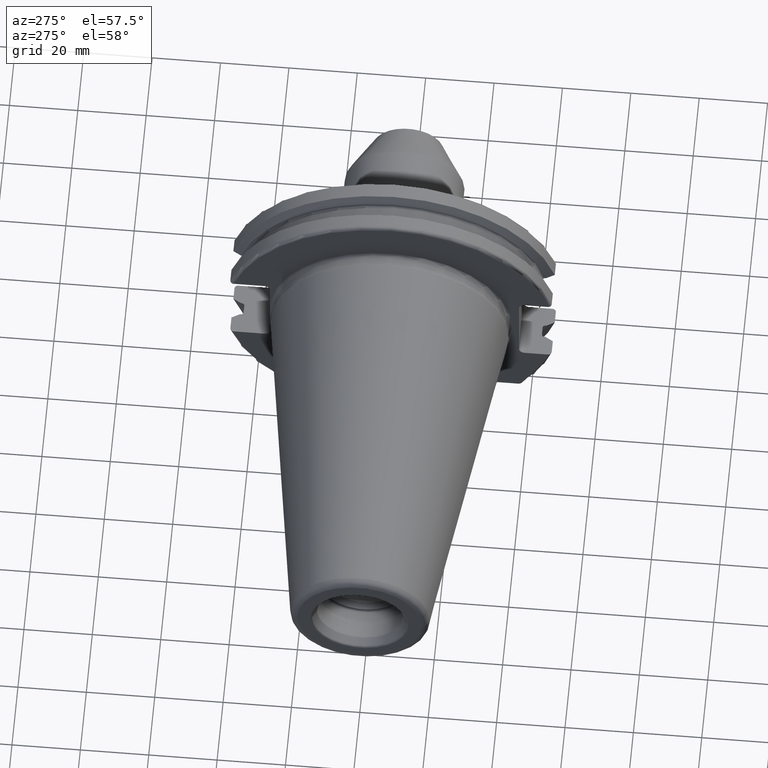
[diagram: clean part render]
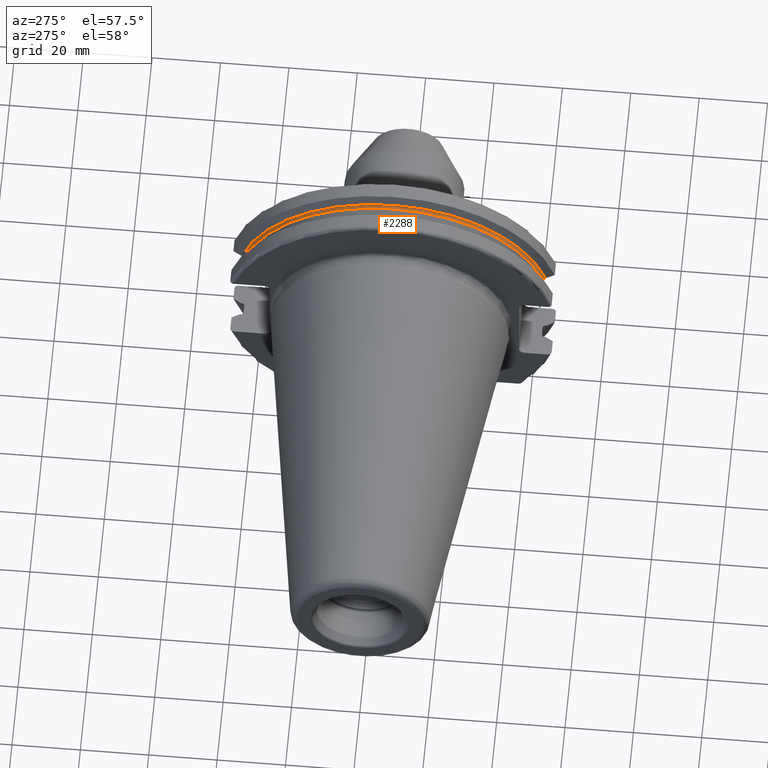
[diagram: same view with one face highlighted and labeled with its STEP entity id]
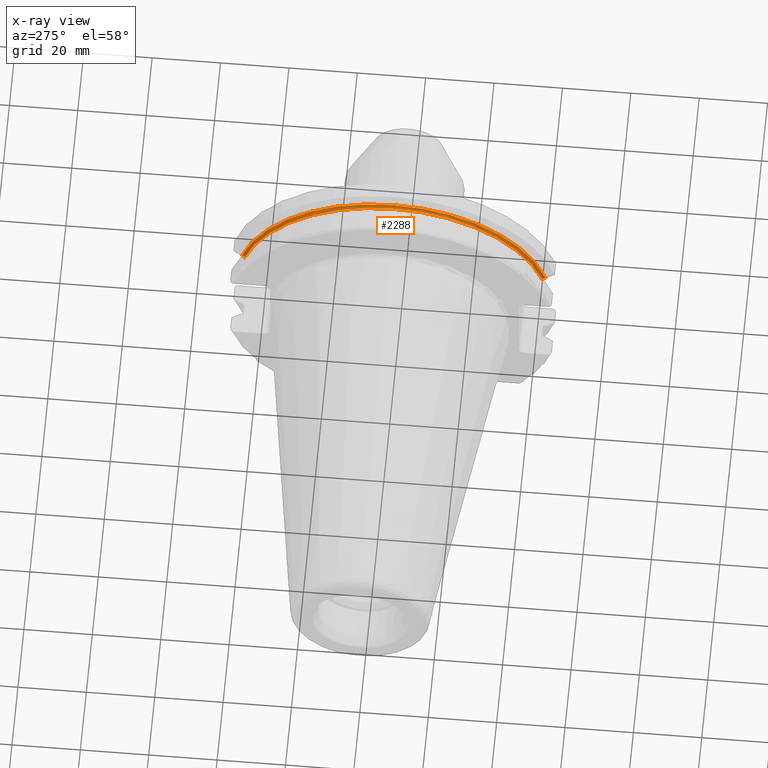
[diagram: x-ray of the same camera — body ghosted, the highlighted face saturated]
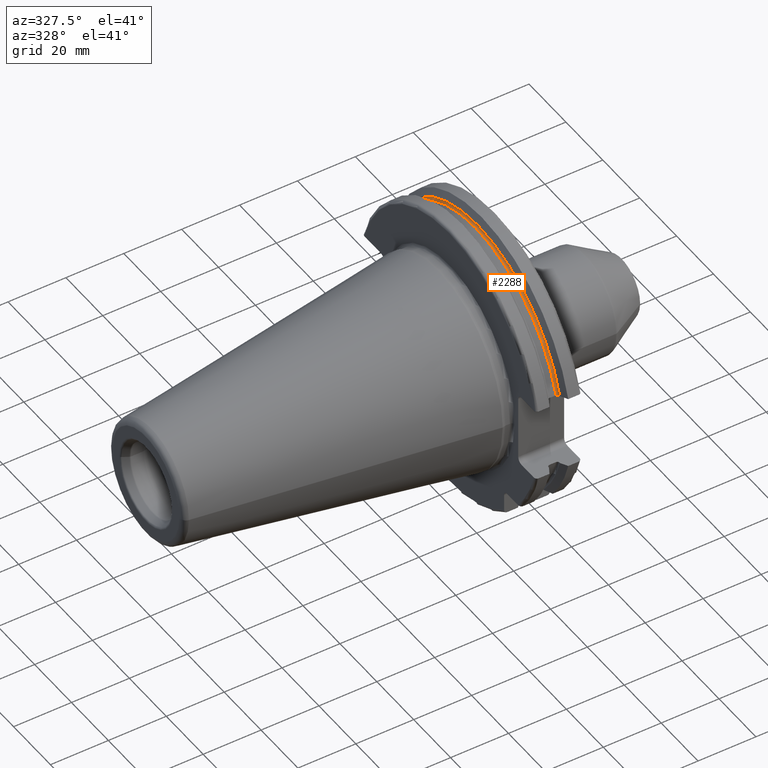
[diagram: same view with one face highlighted and labeled with its STEP entity id]
A machine part, auxiliary view. The second image highlights one B-rep face of the part: STEP entity #2288.
The next image is the same camera in x-ray: the body ghosted, the highlighted face saturated — about 0% of this face is hidden behind the body in this view.
A second angle (auxiliary view) of the same face is appended — the face is thin or edge-on in the first view.
In plain terms, the highlighted toroidal blend (fillet) surface has major radius 46.25 mm and minor (blend) radius 0.75 mm.
Its self-contained STEP definition (entity closure, byte-faithful):
#518=CARTESIAN_POINT('',(1.30875E1,4.441455279523E1,1.29E1));
#519=CARTESIAN_POINT('',(1.30875E1,4.435557140525E1,1.29E1));
#520=CARTESIAN_POINT('',(1.307499016648E1,4.424100688759E1,1.29E1));
#521=CARTESIAN_POINT('',(1.302032710232E1,4.407610890085E1,1.29E1));
#522=CARTESIAN_POINT('',(1.293214994527E1,4.392788522282E1,1.29E1));
#523=CARTESIAN_POINT('',(1.281390038390E1,4.380253784054E1,1.29E1));
#524=CARTESIAN_POINT('',(1.267050623563E1,4.370675082806E1,1.29E1));
#525=CARTESIAN_POINT('',(1.250801539042E1,4.364662320814E1,1.29E1));
#526=CARTESIAN_POINT('',(1.239551042481E1,4.363301502303E1,1.29E1));
#527=CARTESIAN_POINT('',(1.23375E1,4.363301502303E1,1.29E1));
#529=CARTESIAN_POINT('',(1.23375E1,-4.363301502303E1,1.29E1));
#530=CARTESIAN_POINT('',(1.239557783586E1,-4.363301502303E1,1.29E1));
#531=CARTESIAN_POINT('',(1.250820906846E1,-4.364665007470E1,1.29E1));
#532=CARTESIAN_POINT('',(1.267093813797E1,-4.370694986561E1,1.29E1));
#533=CARTESIAN_POINT('',(1.281439563225E1,-4.380294947330E1,1.29E1));
#534=CARTESIAN_POINT('',(1.293252862153E1,-4.392839993682E1,1.29E1));
#535=CARTESIAN_POINT('',(1.302050347613E1,-4.407653953968E1,1.29E1));
#536=CARTESIAN_POINT('',(1.307501400290E1,-4.424119768686E1,1.29E1));
#537=CARTESIAN_POINT('',(1.30875E1,-4.435563691943E1,1.29E1));
#538=CARTESIAN_POINT('',(1.30875E1,-4.441455279523E1,1.29E1));
#540=CARTESIAN_POINT('',(1.23375E1,0.E0,0.E0));
#541=DIRECTION('',(1.E0,0.E0,0.E0));
#542=DIRECTION('',(0.E0,9.589673631435E-1,2.835164835165E-1));
#543=AXIS2_PLACEMENT_3D('',#540,#541,#542);
#553=CARTESIAN_POINT('',(1.30875E1,0.E0,0.E0));
#554=DIRECTION('',(1.E0,0.E0,0.E0));
#555=DIRECTION('',(0.E0,9.603146550319E-1,2.789189189189E-1));
#556=AXIS2_PLACEMENT_3D('',#553,#554,#555);
#1478=CARTESIAN_POINT('',(1.23375E1,4.363301502303E1,1.29E1));
#1479=VERTEX_POINT('',#1478);
#1480=CARTESIAN_POINT('',(1.23375E1,-4.363301502303E1,1.29E1));
#1481=VERTEX_POINT('',#1480);
#1482=VERTEX_POINT('',#518);
#1483=VERTEX_POINT('',#538);
#2276=CARTESIAN_POINT('',(1.23375E1,0.E0,0.E0));
#2277=DIRECTION('',(1.E0,0.E0,0.E0));
#2278=DIRECTION('',(0.E0,-1.E0,0.E0));
#2279=AXIS2_PLACEMENT_3D('',#2276,#2277,#2278);
#2280=TOROIDAL_SURFACE('',#2279,4.625E1,7.5E-1);
#2281=ORIENTED_EDGE('',*,*,#2138,.F.);
#2283=ORIENTED_EDGE('',*,*,#2282,.T.);
#2284=ORIENTED_EDGE('',*,*,#2083,.F.);
#2285=ORIENTED_EDGE('',*,*,#2269,.F.);
#2286=EDGE_LOOP('',(#2281,#2283,#2284,#2285));
#2287=FACE_OUTER_BOUND('',#2286,.F.);
#2288=ADVANCED_FACE('',(#2287),#2280,.F.);
#528=B_SPLINE_CURVE_WITH_KNOTS('',3,(#518,#519,#520,#521,#522,#523,#524,#525,
#526,#527),.UNSPECIFIED.,.F.,.F.,(4,1,1,1,1,1,1,4),(0.E0,1.428571428571E-1,
2.857142857143E-1,4.285714285714E-1,5.714285714286E-1,7.142857142857E-1,
8.571428571429E-1,1.E0),.UNSPECIFIED.);
#539=B_SPLINE_CURVE_WITH_KNOTS('',3,(#529,#530,#531,#532,#533,#534,#535,#536,
#537,#538),.UNSPECIFIED.,.F.,.F.,(4,1,1,1,1,1,1,4),(0.E0,1.428571428571E-1,
2.857142857143E-1,4.285714285714E-1,5.714285714286E-1,7.142857142857E-1,
8.571428571429E-1,1.E0),.UNSPECIFIED.);
#544=CIRCLE('',#543,4.55E1);
#557=CIRCLE('',#556,4.625E1);
#2083=EDGE_CURVE('',#1481,#1483,#539,.T.);
#2138=EDGE_CURVE('',#1482,#1479,#528,.T.);
#2269=EDGE_CURVE('',#1479,#1481,#544,.T.);
#2282=EDGE_CURVE('',#1482,#1483,#557,.T.);